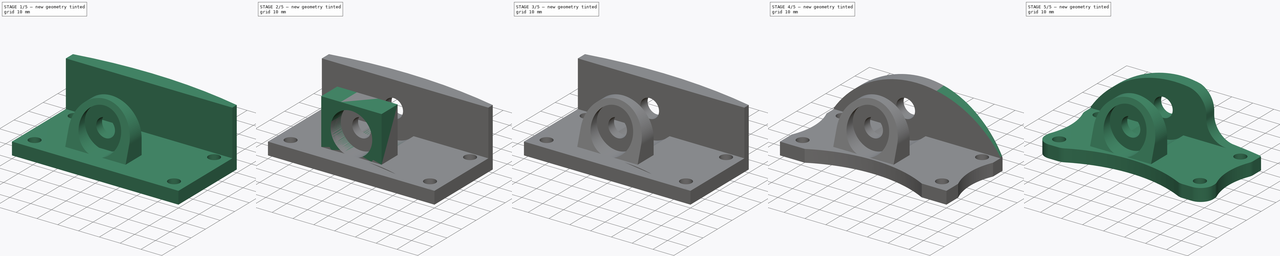
[diagram: build sequence overview — one tinted view per stage of 5, left to right]
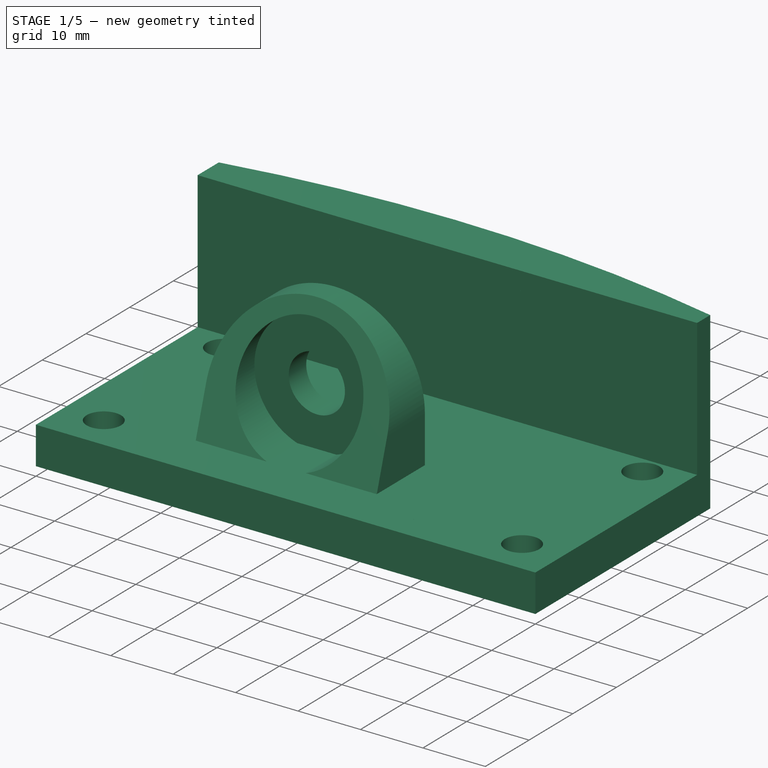
[diagram: stage 1 of 5 — iso view after this stage's code; geometry added in this stage tinted green]
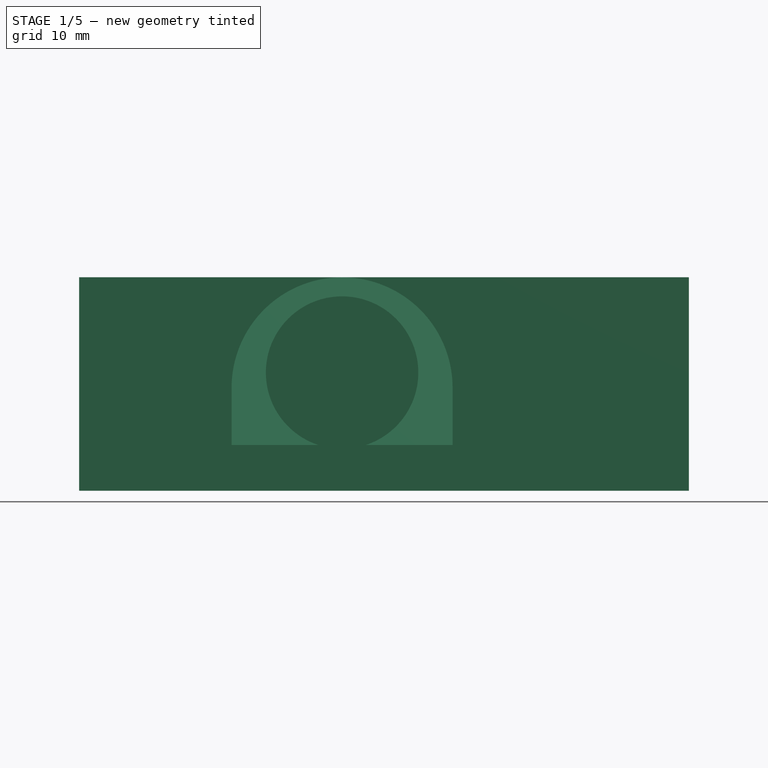
[diagram: stage 1 of 5 — front view after this stage's code; geometry added in this stage tinted green]
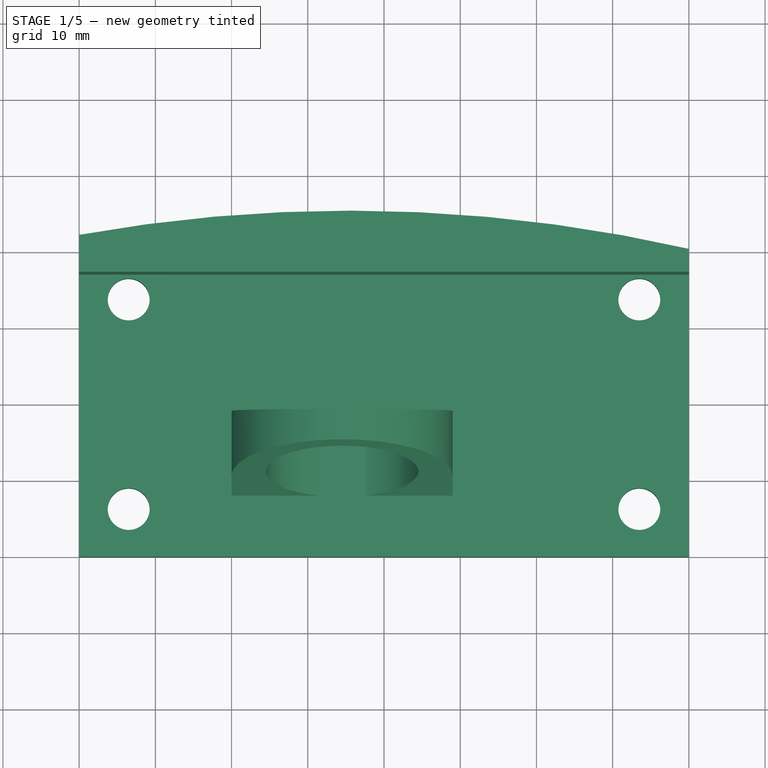
[diagram: stage 1 of 5 — top view after this stage's code; geometry added in this stage tinted green]
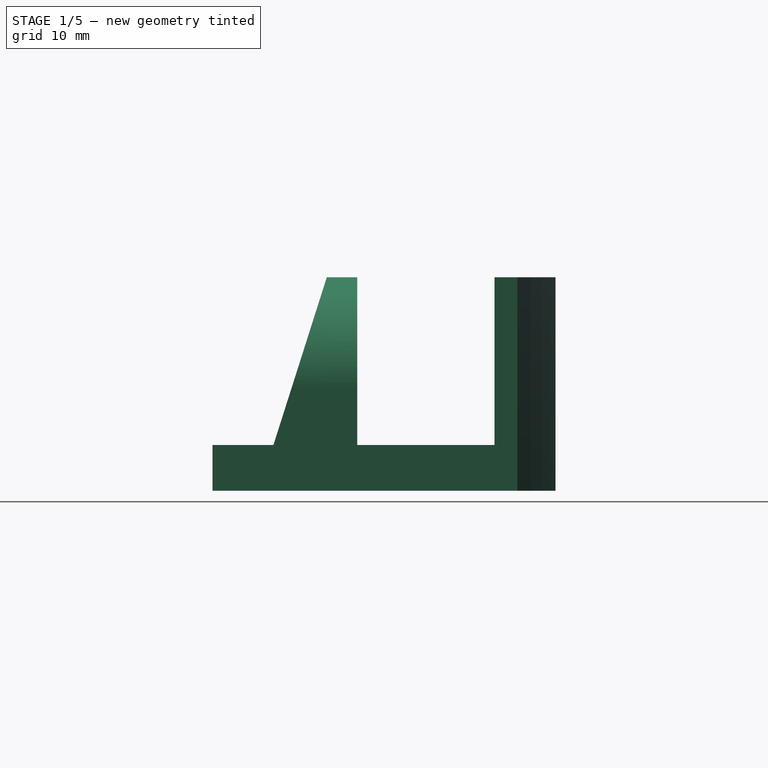
[diagram: stage 1 of 5 — right view after this stage's code; geometry added in this stage tinted green]
FCSTD DOCUMENT  (FreeCAD 0.17R7872 (Git))
Label: y_idler_mount_v4.0
License: All rights reserved
LicenseURL: http://en.wikipedia.org/wiki/All_rights_reserved
objects: Sketcher::SketchObject×17, PartDesign::Pocket×10, PartDesign::Pad×7, PartDesign::Chamfer×3, PartDesign::Fillet×3, Part::Feature×1
note: 58 computed .brp shape members not serialized (recipe doc carries the construction recipe); baked Part::Feature solids carry a one-line shape summary decoded from their .brp

FEATURE [Sketcher::SketchObject] Sketch
  MapMode = 5
  sketch-geometry (20):
    g0: LineSegment StartX=0 StartY=0 StartZ=0 EndX=80 EndY=0 EndZ=0
    g1: LineSegment StartX=80 StartY=0 StartZ=0 EndX=80 EndY=40 EndZ=0
    g2: LineSegment StartX=80 StartY=40 StartZ=0 EndX=0 EndY=40 EndZ=0
    g3: LineSegment StartX=0 StartY=40 StartZ=0 EndX=0 EndY=0 EndZ=0
    g4: LineSegment [constr] StartX=6.5 StartY=33.75 StartZ=0 EndX=73.5 EndY=33.75 EndZ=0
    g5: LineSegment [constr] StartX=73.5 StartY=33.75 StartZ=0 EndX=73.5 EndY=6.25 EndZ=0
    g6: LineSegment [constr] StartX=73.5 StartY=6.25 StartZ=0 EndX=6.5 EndY=6.25 EndZ=0
    g7: LineSegment [constr] StartX=6.5 StartY=6.25 StartZ=0 EndX=6.5 EndY=33.75 EndZ=0
    g8: LineSegment [constr] StartX=0 StartY=40 StartZ=0 EndX=6.5 EndY=40 EndZ=0
    g9: LineSegment [constr] StartX=6.5 StartY=40 StartZ=0 EndX=6.5 EndY=33.75 EndZ=0
    g10: LineSegment [constr] StartX=6.5 StartY=33.75 StartZ=0 EndX=0 EndY=33.75 EndZ=0
    g11: LineSegment [constr] StartX=0 StartY=33.75 StartZ=0 EndX=0 EndY=40 EndZ=0
    g12: LineSegment [constr] StartX=80 StartY=0 StartZ=0 EndX=73.5 EndY=0 EndZ=0
    g13: LineSegment [constr] StartX=73.5 StartY=0 StartZ=0 EndX=73.5 EndY=6.25 EndZ=0
    g14: LineSegment [constr] StartX=73.5 StartY=6.25 StartZ=0 EndX=80 EndY=6.25 EndZ=0
    g15: LineSegment [constr] StartX=80 StartY=6.25 StartZ=0 EndX=80 EndY=0 EndZ=0
    g16: Circle CenterX=6.5 CenterY=33.75 CenterZ=0 NormalX=0 NormalY=0 NormalZ=1 Radius=2.75
    g17: Circle CenterX=73.5 CenterY=33.75 CenterZ=0 NormalX=0 NormalY=0 NormalZ=1 Radius=2.75
    g18: Circle CenterX=73.5 CenterY=6.25 CenterZ=0 NormalX=0 NormalY=0 NormalZ=1 Radius=2.75
    g19: Circle CenterX=6.5 CenterY=6.25 CenterZ=0 NormalX=0 NormalY=0 NormalZ=1 Radius=2.75
  constraints (51):
    c: Coincident(g0,g1)
    c: Coincident(g2,g3)
    c: Coincident(g3,g0)
    c: Horizontal(g0)
    c: Horizontal(g2)
    c: Vertical(g1)
    c: Vertical(g3)
    c: Coincident(g0,g-1)
    c: DistanceX(g2) = -80
    c: DistanceY(g3) = -40
    c: Coincident(g5,g6)
    c: Coincident(g6,g7)
    c: Coincident(g7,g4)
    c: Horizontal(g4)
    c: Horizontal(g6)
    c: Vertical(g5)
    c: Vertical(g7)
    c: Coincident(g8,g9)
    c: Coincident(g9,g10)
    c: Coincident(g10,g11)
    c: Coincident(g11,g8)
    c: Horizontal(g8)
    c: Horizontal(g10)
    c: Vertical(g9)
    c: Vertical(g11)
    c: Coincident(g8,g2)
    c: Coincident(g9,g4)
    c: Coincident(g12,g13)
    c: Coincident(g13,g14)
    c: Coincident(g14,g15)
    c: Coincident(g15,g12)
    c: Horizontal(g12)
    c: Horizontal(g14)
    c: Vertical(g13)
    c: Vertical(g15)
    c: Coincident(g12,g0)
    c: Coincident(g13,g5)
    c: Equal(g14,g10)
    c: Equal(g9,g13)
    c: Coincident(g16,g4)
    c: Coincident(g4,g5)
    c: Coincident(g17,g4)
    c: Coincident(g18,g5)
    c: Coincident(g19,g6)
    c: Radius(g16) = 2.75
    c: Equal(g16,g19)
    c: Equal(g16,g17)
    c: Equal(g16,g18)
    c: DistanceX(g6) = -67
    c: DistanceY(g5) = -27.5
    c: Coincident(g2,g1)
FEATURE [PartDesign::Pad] Pad
  Length = 6
  Length2 = 100
  Profile = -> Sketch
  Type = 0
FEATURE [Sketcher::SketchObject] Sketch001
  ExternalGeometry = -> [Pad]
  MapMode = 5
  Placement = pos=(0,0,6) rot=(0,0,1;0rad)
  Support = -> [Pad]
  sketch-geometry (4):
    g0: ArcOfCircle CenterX=35.5 CenterY=-154.987 CenterZ=0 NormalX=0 NormalY=0 NormalZ=1 Radius=200 StartAngle=1.34642 EndAngle=1.74924
    g1: LineSegment StartX=0 StartY=41.8376 StartZ=0 EndX=0 EndY=37 EndZ=0
    g2: LineSegment StartX=0 StartY=37 StartZ=0 EndX=80 EndY=37 EndZ=0
    g3: LineSegment StartX=80 StartY=37 StartZ=0 EndX=80 EndY=40 EndZ=0
  constraints (12):
    c: Radius(g0) = 200
    c: DistanceX(g-1,g0) = 35.5
    c: PointOnObject(g0,g-2)
    c: Coincident(g1,g0)
    c: PointOnObject(g1,g-2)
    c: Coincident(g1,g2)
    c: Horizontal(g2)
    c: Coincident(g2,g3)
    c: Coincident(g3,g0)
    c: Vertical(g3)
    c: Coincident(g0,g-3)
    c: DistanceY(g3) = 3
FEATURE [PartDesign::Pad] Pad001
  Length = 22
  Length2 = 6
  Profile = -> Sketch001
  Type = 4
FEATURE [Part::Feature] Fillet002_solid  label="Fillet002 (Solid)"
  shape: bbox 81.91 x 45.05 x 28 mm, 70 faces (baked)
FEATURE [Sketcher::SketchObject] Sketch014
  ExternalGeometry = -> [Fillet002_solid]
  MapMode = 5
  Placement = pos=(0,0,0) rot=(1,0,0;3.14159rad)
  Support = -> [Fillet002_solid]
  sketch-geometry (4):
    g0: LineSegment StartX=20 StartY=-19 StartZ=0 EndX=49 EndY=-19 EndZ=0
    g1: LineSegment StartX=49 StartY=-19 StartZ=0 EndX=49 EndY=-8 EndZ=0
    g2: LineSegment StartX=49 StartY=-8 StartZ=0 EndX=20 EndY=-8 EndZ=0
    g3: LineSegment StartX=20 StartY=-8 StartZ=0 EndX=20 EndY=-19 EndZ=0
  constraints (10):
    c: Coincident(g0,g1)
    c: Coincident(g1,g2)
    c: Coincident(g2,g3)
    c: Coincident(g3,g0)
    c: Horizontal(g0)
    c: Horizontal(g2)
    c: Vertical(g1)
    c: Vertical(g3)
    c: Coincident(g0,g-3)
    c: Coincident(g1,g-4)
FEATURE [PartDesign::Pad] Pad006
  Length = 10
  Length2 = 100
  Profile = -> Sketch014
  Reversed = true
  Type = 0
FEATURE [Sketcher::SketchObject] Sketch015
  ExternalGeometry = -> [Pad006]
  MapMode = 5
  Placement = pos=(80,0,0) rot=(0.57735,0.57735,0.57735;2.0944rad)
  Support = -> [Pad006]
  sketch-geometry (3):
    g0: LineSegment StartX=8 StartY=6 StartZ=0 EndX=10.3864 EndY=13.5 EndZ=0
    g1: LineSegment StartX=10.3864 StartY=13.5 StartZ=0 EndX=8 EndY=13.5 EndZ=0
    g2: LineSegment StartX=8 StartY=13.5 StartZ=0 EndX=8 EndY=6 EndZ=0
  constraints (7):
    c: Coincident(g-4,g0)
    c: Coincident(g0,g-3)
    c: Coincident(g0,g1)
    c: Horizontal(g1)
    c: Coincident(g1,g2)
    c: Coincident(g2,g0)
    c: Vertical(g2)
FEATURE [PartDesign::Pocket] Pocket008
  Length = 5
  Profile = -> Sketch015
  Type = 1
FEATURE [Sketcher::SketchObject] Sketch016
  ExternalGeometry = -> [Pocket008]
  MapMode = 5
  Placement = pos=(0,0,0) rot=(1,0,0;1.5708rad)
  Support = -> [Pocket008]
  sketch-geometry (1):
    g0: Circle CenterX=34.5 CenterY=15.5 CenterZ=0 NormalX=0 NormalY=0 NormalZ=1 Radius=10
  constraints (2):
    c: Coincident(g0,g-4)
    c: PointOnObject(g-4,g0)
FEATURE [PartDesign::Pocket] Pocket009
  Length = 15
  Profile = -> Sketch016
  Type = 0
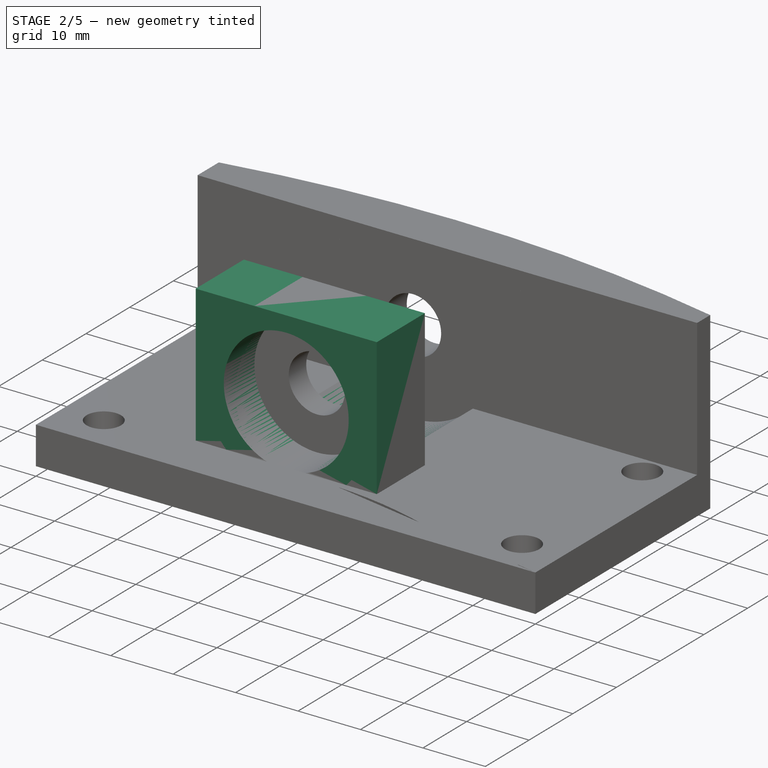
[diagram: stage 2 of 5 — iso view after this stage's code; geometry added in this stage tinted green]
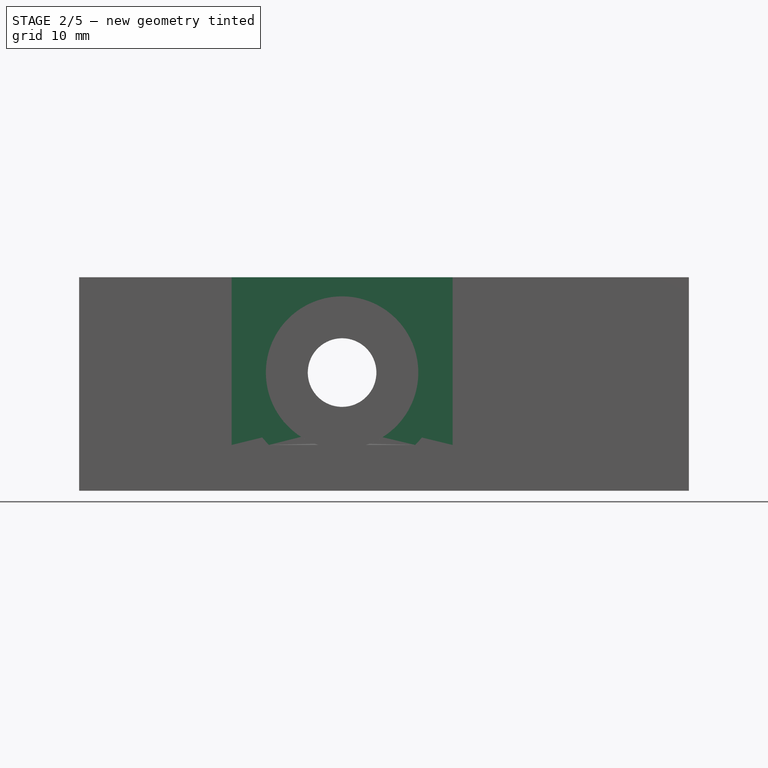
[diagram: stage 2 of 5 — front view after this stage's code; geometry added in this stage tinted green]
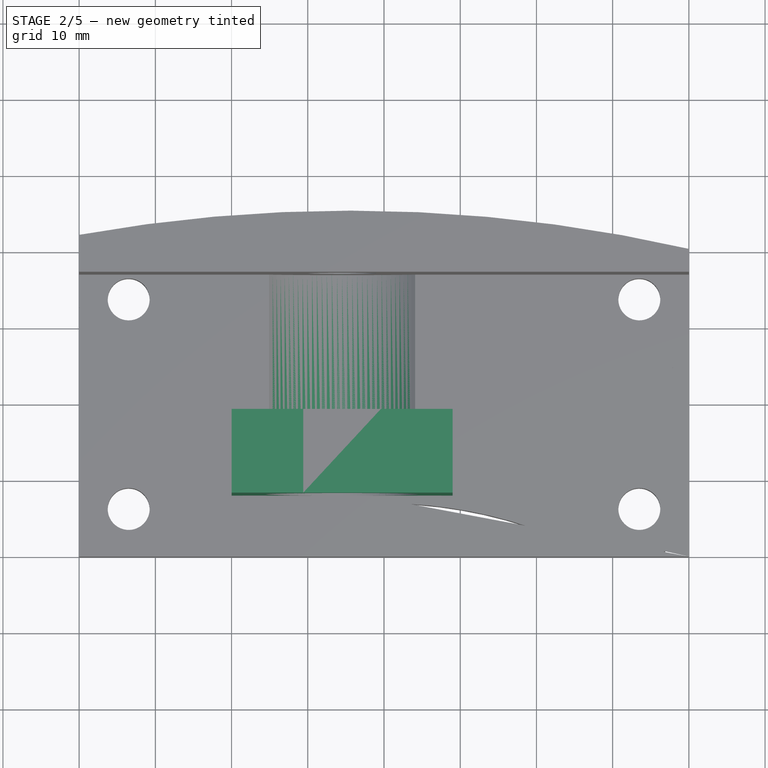
[diagram: stage 2 of 5 — top view after this stage's code; geometry added in this stage tinted green]
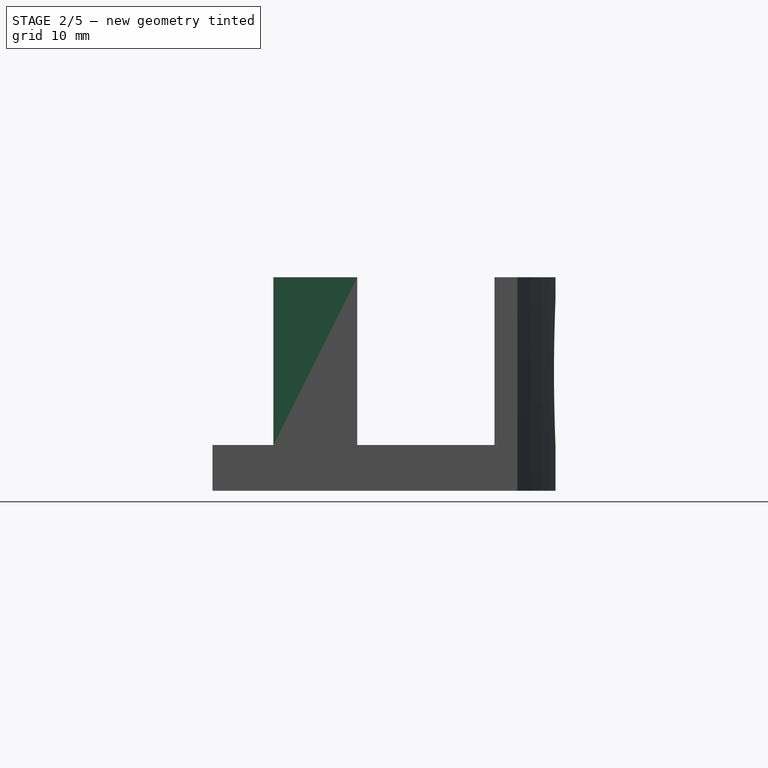
[diagram: stage 2 of 5 — right view after this stage's code; geometry added in this stage tinted green]
FEATURE [Sketcher::SketchObject] Sketch002
  ExternalGeometry = -> [Pad001]
  MapMode = 5
  Placement = pos=(0,0,6) rot=(0,0,1;0rad)
  Support = -> [Pad001]
  sketch-geometry (4):
    g0: LineSegment StartX=20 StartY=19 StartZ=0 EndX=49 EndY=19 EndZ=0
    g1: LineSegment StartX=49 StartY=19 StartZ=0 EndX=49 EndY=8 EndZ=0
    g2: LineSegment StartX=49 StartY=8 StartZ=0 EndX=20 EndY=8 EndZ=0
    g3: LineSegment StartX=20 StartY=8 StartZ=0 EndX=20 EndY=19 EndZ=0
  constraints (12):
    c: Coincident(g0,g1)
    c: Coincident(g1,g2)
    c: Coincident(g2,g3)
    c: Coincident(g3,g0)
    c: Horizontal(g0)
    c: Horizontal(g2)
    c: Vertical(g1)
    c: Vertical(g3)
    c: DistanceY(g3) = 11
    c: DistanceX(g0) = 29
    c: DistanceX(g-4,g2) = 13.5
    c: DistanceY(g-3,g0) = -18
FEATURE [PartDesign::Pad] Pad002
  Length = 22
  Length2 = 100
  Profile = -> Sketch002
  Type = 0
FEATURE [Sketcher::SketchObject] Sketch003
  ExternalGeometry = -> [Pad002]
  MapMode = 5
  Placement = pos=(0,8,0) rot=(1,0,0;1.5708rad)
  Support = -> [Pad002]
  sketch-geometry (4):
    g0: Circle [constr] CenterX=34.5 CenterY=15.5 CenterZ=0 NormalX=0 NormalY=0 NormalZ=1 Radius=4.5
    g1: LineSegment [constr] StartX=20 StartY=28 StartZ=0 EndX=34.5 EndY=15.5 EndZ=0
    g2: LineSegment [constr] StartX=34.5 StartY=15.5 StartZ=0 EndX=49 EndY=28 EndZ=0
    g3: Circle CenterX=34.5 CenterY=15.5 CenterZ=0 NormalX=0 NormalY=0 NormalZ=1 Radius=13.5
  constraints (9):
    c: DistanceY(g0,g-3) = -9.5
    c: Coincident(g-4,g1)
    c: Coincident(g1,g0)
    c: Coincident(g1,g2)
    c: Coincident(g2,g-4)
    c: Equal(g2,g1)
    c: Radius(g0) = 4.5
    c: Coincident(g3,g0)
    c: Radius(g3) = 13.5
FEATURE [PartDesign::Pocket] Pocket
  Length = 29
  Profile = -> Sketch003
  Type = 0
FEATURE [Sketcher::SketchObject] Sketch004
  ExternalGeometry = -> [Pocket]
  MapMode = 5
  Placement = pos=(0,8,0) rot=(1,0,0;1.5708rad)
  Support = -> [Pocket]
  sketch-geometry (4):
    g0: LineSegment StartX=20 StartY=28 StartZ=0 EndX=49 EndY=28 EndZ=0
    g1: LineSegment StartX=49 StartY=28 StartZ=0 EndX=49 EndY=6 EndZ=0
    g2: LineSegment StartX=49 StartY=6 StartZ=0 EndX=20 EndY=6 EndZ=0
    g3: LineSegment StartX=20 StartY=6 StartZ=0 EndX=20 EndY=28 EndZ=0
  constraints (11):
    c: Coincident(g0,g1)
    c: Coincident(g1,g2)
    c: Coincident(g2,g3)
    c: Coincident(g3,g0)
    c: Horizontal(g0)
    c: Horizontal(g2)
    c: Vertical(g1)
    c: Vertical(g3)
    c: Coincident(g0,g-3)
    c: PointOnObject(g1,g-4)
    c: DistanceX(g0) = 29
FEATURE [PartDesign::Pad] Pad003
  Length = 11
  Length2 = 100
  Profile = -> Sketch004
  Reversed = true
  Type = 0
FEATURE [Sketcher::SketchObject] Sketch005
  ExternalGeometry = -> [Pad003]
  MapMode = 5
  Placement = pos=(0,8,0) rot=(1,0,0;1.5708rad)
  Support = -> [Pad003]
  sketch-geometry (1):
    g0: Circle CenterX=34.5 CenterY=15.5 CenterZ=0 NormalX=0 NormalY=0 NormalZ=1 Radius=10
  constraints (2):
    c: Coincident(g0,g-3)
    c: Radius(g0) = 10
FEATURE [PartDesign::Pocket] Pocket001
  Length = 5
  Profile = -> Sketch005
  Type = 1
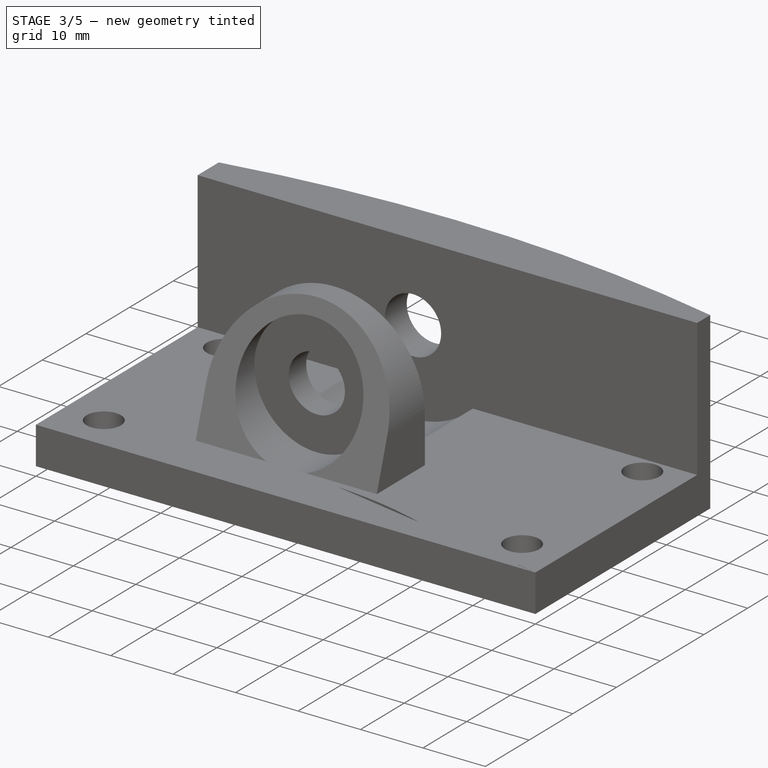
[diagram: stage 3 of 5 — iso view after this stage's code; geometry added in this stage tinted green]
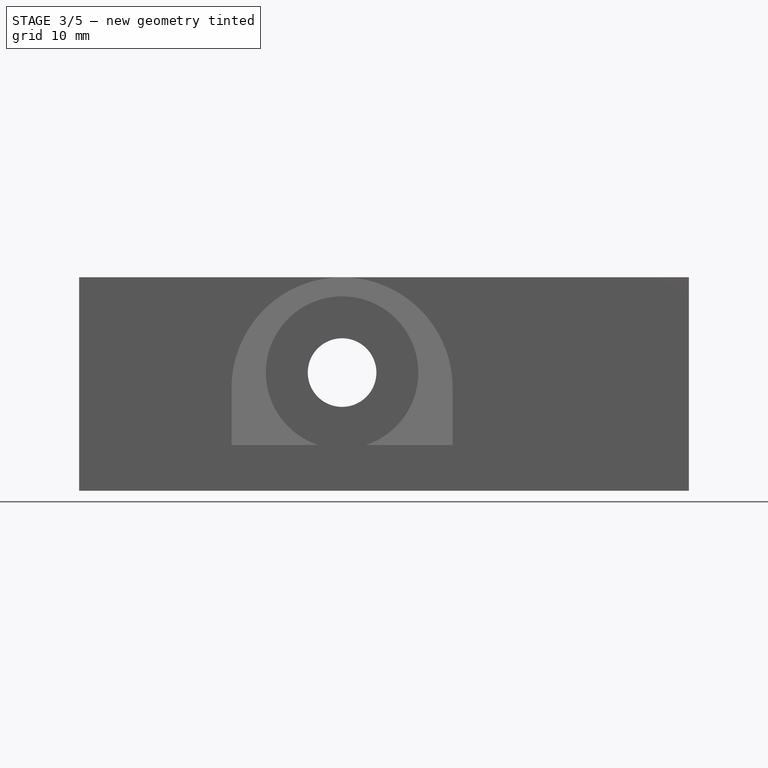
[diagram: stage 3 of 5 — front view after this stage's code; geometry added in this stage tinted green]
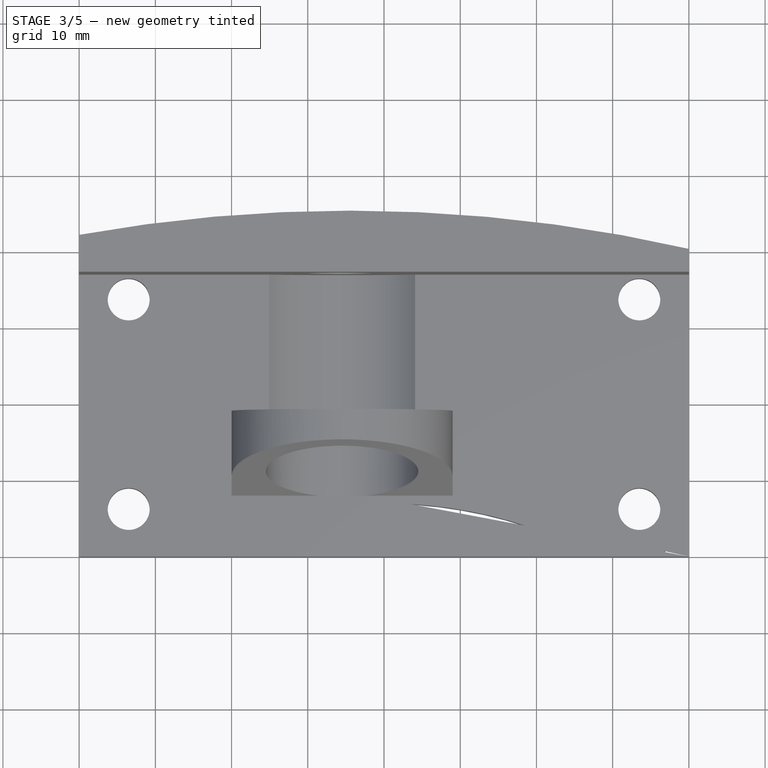
[diagram: stage 3 of 5 — top view after this stage's code; geometry added in this stage tinted green]
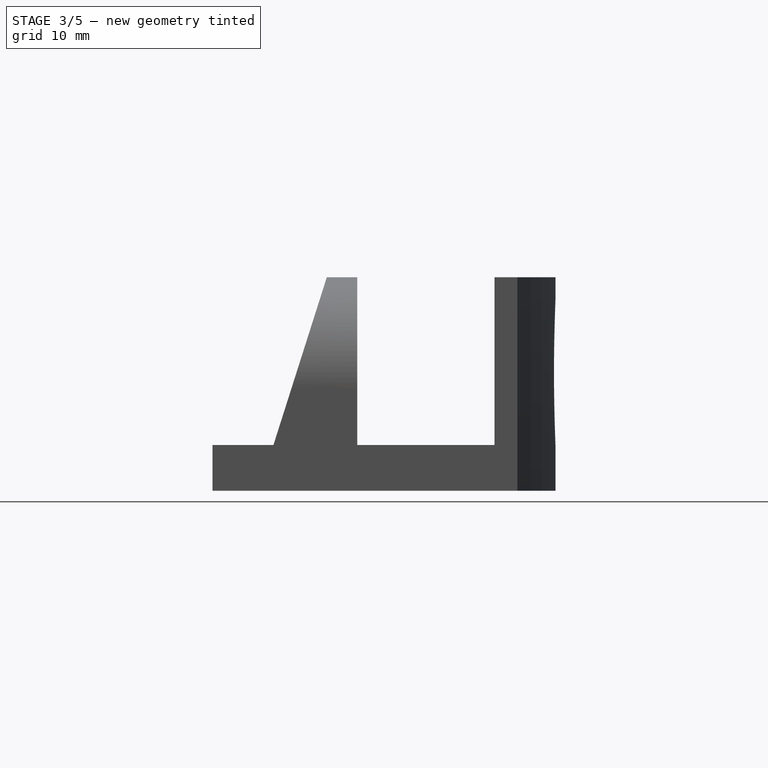
[diagram: stage 3 of 5 — right view after this stage's code; geometry added in this stage tinted green]
FEATURE [Sketcher::SketchObject] Sketch006
  ExternalGeometry = -> [Pocket001]
  MapMode = 5
  Placement = pos=(0,37,0) rot=(1,0,0;1.5708rad)
  Support = -> [Pocket001]
  sketch-geometry (2):
    g0: Circle CenterX=34.5 CenterY=15.5 CenterZ=0 NormalX=0 NormalY=0 NormalZ=1 Radius=4.5
    g1: Circle CenterX=34.5 CenterY=15.5 CenterZ=0 NormalX=0 NormalY=0 NormalZ=1 Radius=10.5
  constraints (4):
    c: Coincident(g0,g-3)
    c: Coincident(g1,g0)
    c: Radius(g1) = 10.5
    c: Radius(g0) = 4.5
FEATURE [PartDesign::Pad] Pad004
  Length = 5
  Length2 = 100
  Profile = -> Sketch006
  Reversed = true
  Type = 0
FEATURE [PartDesign::Chamfer] Chamfer
  Base = -> Pad004 [Edge98]
  Size = 2
FEATURE [Sketcher::SketchObject] Sketch007
  ExternalGeometry = -> [Chamfer]
  MapMode = 5
  Placement = pos=(0,19,0) rot=(0,0.707107,0.707107;3.14159rad)
  Support = -> [Chamfer]
  sketch-geometry (2):
    g0: Circle CenterX=-34.5 CenterY=15.5 CenterZ=0 NormalX=0 NormalY=0 NormalZ=1 Radius=4.5
    g1: Circle CenterX=-34.5 CenterY=15.5 CenterZ=0 NormalX=0 NormalY=0 NormalZ=1 Radius=10.5
  constraints (4):
    c: Coincident(g0,g-3)
    c: Coincident(g1,g0)
    c: Radius(g1) = 10.5
    c: Radius(g0) = 4.5
FEATURE [PartDesign::Pad] Pad005
  Length = 4
  Length2 = 100
  Profile = -> Sketch007
  Reversed = true
  Type = 0
FEATURE [Sketcher::SketchObject] Sketch008
  ExternalGeometry = -> [Pad005]
  MapMode = 5
  Placement = pos=(49,0,0) rot=(0.57735,0.57735,0.57735;2.0944rad)
  Support = -> [Pad005]
  sketch-geometry (3):
    g0: LineSegment StartX=8 StartY=6 StartZ=0 EndX=15 EndY=28 EndZ=0
    g1: LineSegment StartX=15 StartY=28 StartZ=0 EndX=8 EndY=28 EndZ=0
    g2: LineSegment StartX=8 StartY=28 StartZ=0 EndX=8 EndY=6 EndZ=0
  constraints (7):
    c: Coincident(g-4,g0)
    c: PointOnObject(g0,g-3)
    c: Coincident(g0,g1)
    c: Coincident(g1,g-4)
    c: Coincident(g1,g2)
    c: Coincident(g2,g0)
    c: DistanceX(g0,g-3) = 4
FEATURE [PartDesign::Pocket] Pocket002
  Length = 5
  Profile = -> Sketch008
  Type = 1
FEATURE [Sketcher::SketchObject] Sketch009
  ExternalGeometry = -> [Pocket002]
  MapMode = 5
  Placement = pos=(0,19,0) rot=(0,0.707107,0.707107;3.14159rad)
  Support = -> [Pocket002]
  sketch-geometry (5):
    g0: ArcOfCircle CenterX=-34.5 CenterY=13.5 CenterZ=0 NormalX=0 NormalY=0 NormalZ=1 Radius=14.5 StartAngle=6.28319 EndAngle=9.42478
    g1: LineSegment [constr] StartX=-34.5 StartY=15.5 StartZ=0 EndX=-34.5 EndY=13.5 EndZ=0
    g2: LineSegment StartX=-49 StartY=13.5 StartZ=0 EndX=-49 EndY=33.5 EndZ=0
    g3: LineSegment StartX=-49 StartY=33.5 StartZ=0 EndX=-20 EndY=33.5 EndZ=0
    g4: LineSegment StartX=-20 StartY=33.5 StartZ=0 EndX=-20 EndY=13.5 EndZ=0
  constraints (14):
    c: PointOnObject(g0,g-4)
    c: PointOnObject(g0,g-3)
    c: Coincident(g1,g-5)
    c: Coincident(g1,g0)
    c: Vertical(g1)
    c: Tangent(g0,g-3)
    c: Tangent(g0,g-6)
    c: Tangent(g0,g2) = 1.5708
    c: Coincident(g2,g3)
    c: Horizontal(g3)
    c: Coincident(g3,g4)
    c: Coincident(g4,g0)
    c: Vertical(g4)
    c: DistanceY(g2) = 20
FEATURE [PartDesign::Pocket] Pocket003
  Length = 5
  Profile = -> Sketch009
  Type = 1
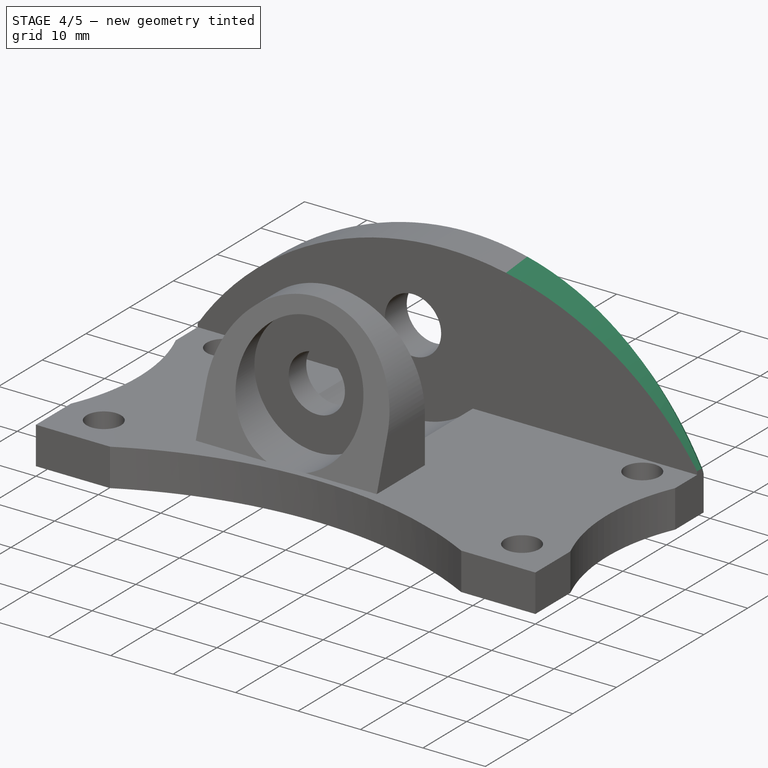
[diagram: stage 4 of 5 — iso view after this stage's code; geometry added in this stage tinted green]
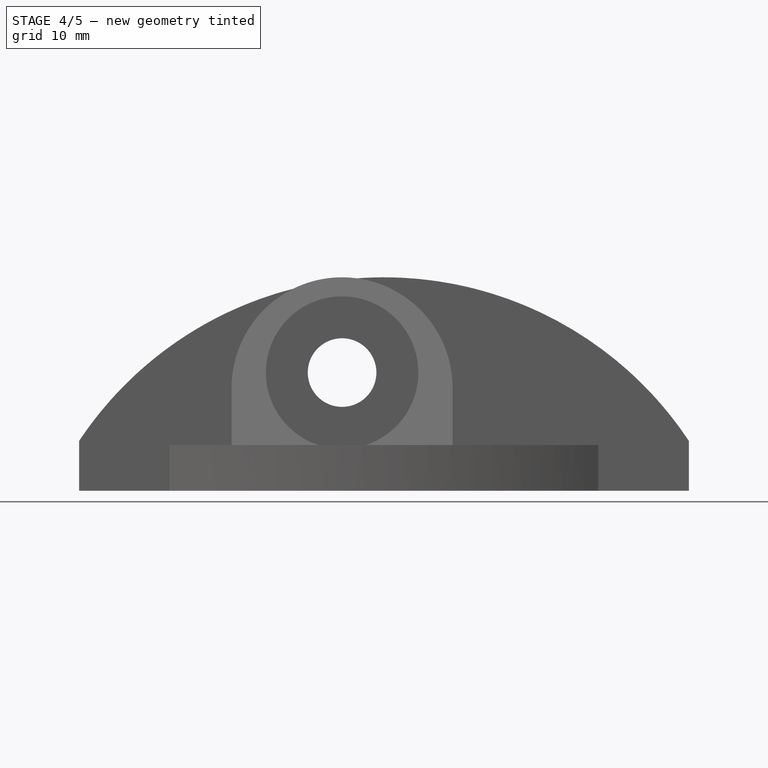
[diagram: stage 4 of 5 — front view after this stage's code; geometry added in this stage tinted green]
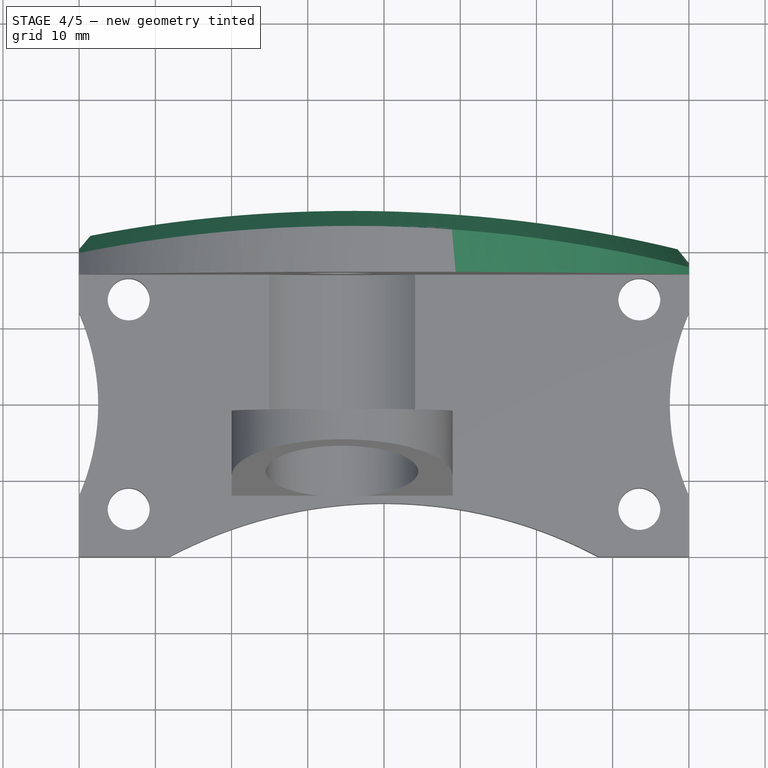
[diagram: stage 4 of 5 — top view after this stage's code; geometry added in this stage tinted green]
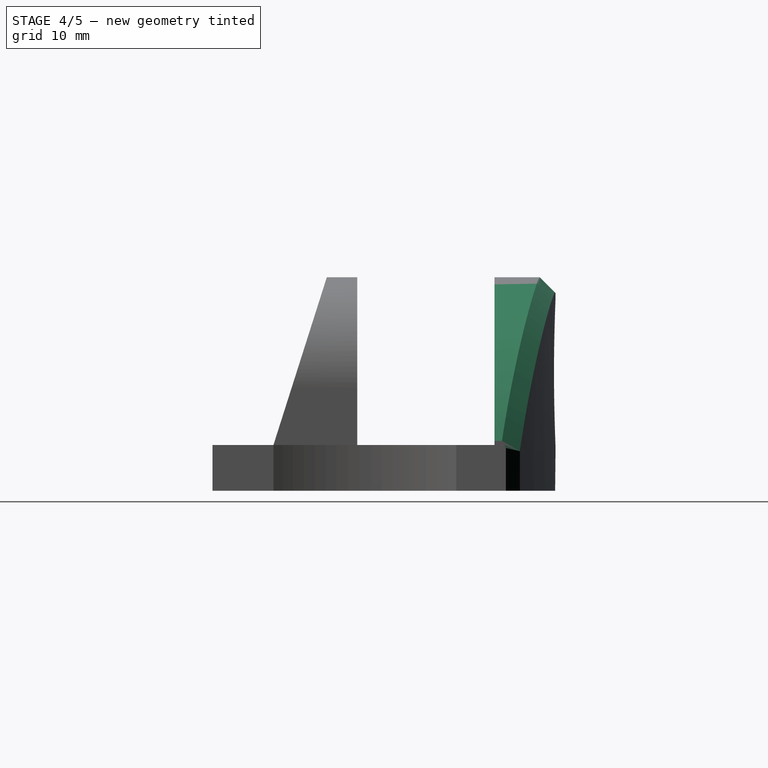
[diagram: stage 4 of 5 — right view after this stage's code; geometry added in this stage tinted green]
FEATURE [Sketcher::SketchObject] Sketch010
  ExternalGeometry = -> [Pocket003]
  MapMode = 5
  Placement = pos=(0,37,0) rot=(1,0,0;1.5708rad)
  Support = -> [Pocket003]
  sketch-geometry (3):
    g0: LineSegment [constr] StartX=34.5 StartY=15.5 StartZ=0 EndX=40 EndY=-20 EndZ=0
    g1: Circle CenterX=40 CenterY=-20 CenterZ=0 NormalX=0 NormalY=0 NormalZ=1 Radius=48
    g2: Circle CenterX=40 CenterY=-20 CenterZ=0 NormalX=0 NormalY=0 NormalZ=1 Radius=70
  constraints (7):
    c: Coincident(g0,g-7)
    c: Coincident(g1,g0)
    c: Tangent(g1,g-3)
    c: DistanceX(g-1,g0) = 40
    c: DistanceY(g-1,g0) = -20
    c: Coincident(g2,g0)
    c: Radius(g2) = 70
FEATURE [PartDesign::Pocket] Pocket004
  Length = 5
  Profile = -> Sketch010
  Type = 1
FEATURE [PartDesign::Chamfer] Chamfer001
  Base = -> Pocket004 [Edge112]
  Size = 2
FEATURE [PartDesign::Chamfer] Chamfer002
  Base = -> Chamfer001 [Edge1,Edge6]
  Size = 1.5
FEATURE [Sketcher::SketchObject] Sketch011
  ExternalGeometry = -> [Chamfer002]
  MapMode = 5
  Placement = pos=(0,0,6) rot=(0,0,1;0rad)
  Support = -> [Chamfer002]
  sketch-geometry (3):
    g0: Circle CenterX=40 CenterY=-53 CenterZ=0 NormalX=0 NormalY=0 NormalZ=1 Radius=60
    g1: Circle CenterX=-27.5 CenterY=20 CenterZ=0 NormalX=0 NormalY=0 NormalZ=1 Radius=30
    g2: Circle CenterX=107.5 CenterY=20 CenterZ=0 NormalX=0 NormalY=0 NormalZ=1 Radius=30
  constraints (9):
    c: DistanceX(g-1,g0) = 40
    c: Radius(g0) = 60
    c: DistanceY(g-1,g1) = 20
    c: Radius(g1) = 30
    c: Equal(g2,g1)
    c: DistanceY(g-1,g2) = 20
    c: DistanceX(g-1,g2) = 107.5
    c: DistanceX(g-1,g1) = -27.5
    c: DistanceY(g-1,g0) = -53
FEATURE [PartDesign::Pocket] Pocket005
  Length = 5
  Profile = -> Sketch011
  Type = 1
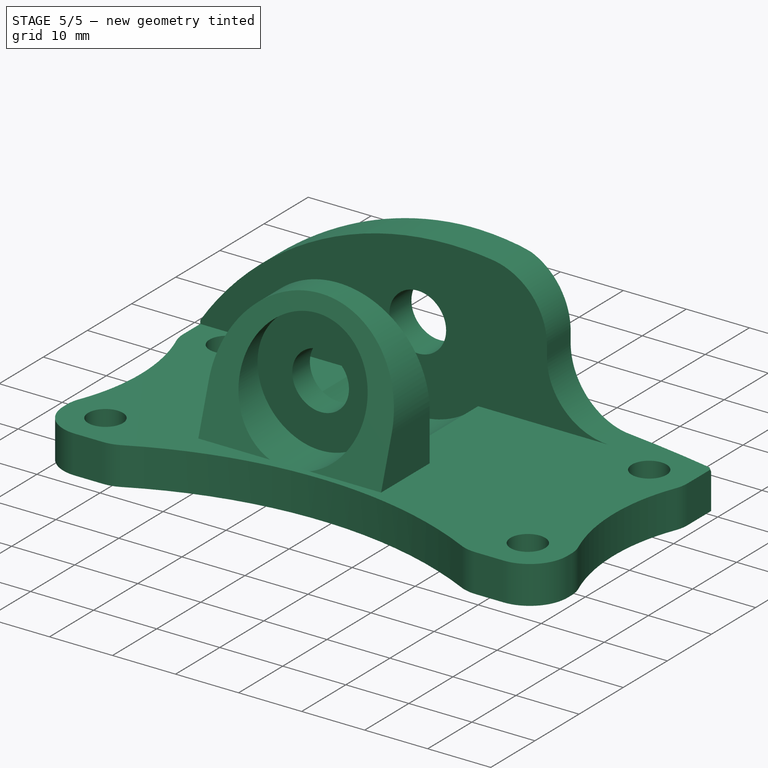
[diagram: stage 5 of 5 — iso view after this stage's code; geometry added in this stage tinted green]
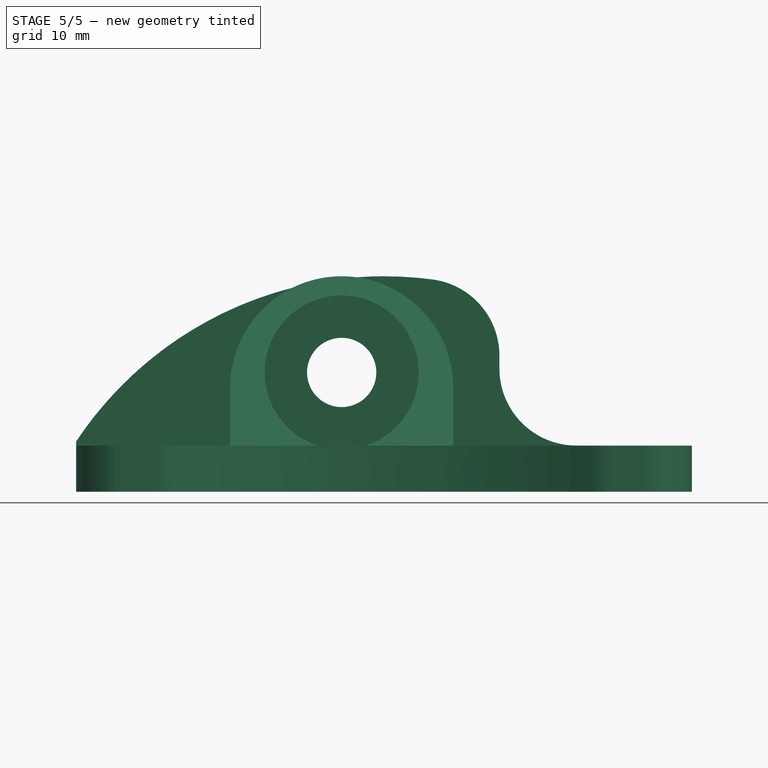
[diagram: stage 5 of 5 — front view after this stage's code; geometry added in this stage tinted green]
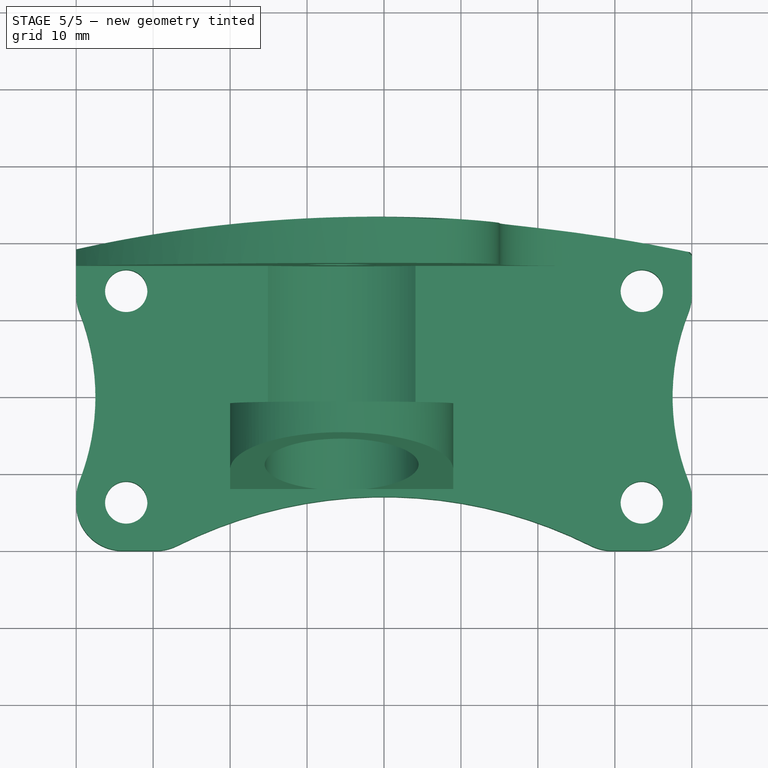
[diagram: stage 5 of 5 — top view after this stage's code; geometry added in this stage tinted green]
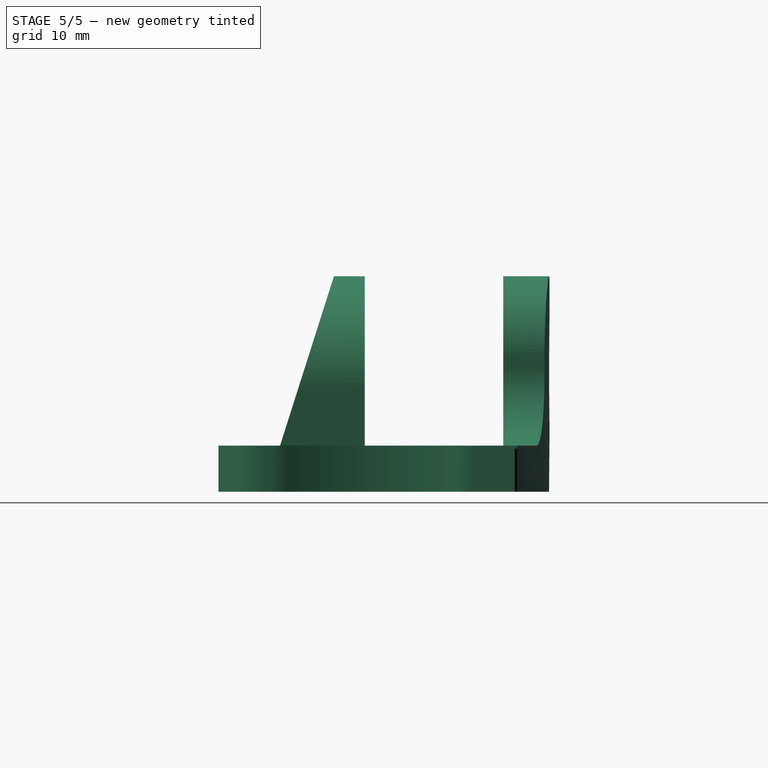
[diagram: stage 5 of 5 — right view after this stage's code; geometry added in this stage tinted green]
FEATURE [PartDesign::Fillet] Fillet
  Base = -> Pocket005 [Edge89,Edge87]
  Radius = 6
FEATURE [PartDesign::Fillet] Fillet001
  Base = -> Fillet [Edge35,Edge25,Edge19,Edge24,Edge36,Edge41]
  Radius = 6
FEATURE [Sketcher::SketchObject] Sketch012
  ExternalGeometry = -> [Fillet001]
  MapMode = 5
  Placement = pos=(0,0,0) rot=(1,0,0;3.14159rad)
  Support = -> [Fillet001]
  sketch-geometry (3):
    g0: Circle CenterX=39 CenterY=154.987 CenterZ=0 NormalX=0 NormalY=0 NormalZ=1 Radius=198
    g1: LineSegment [constr] StartX=35.5 StartY=154.987 StartZ=0 EndX=39 EndY=154.987 EndZ=0
    g2: Circle CenterX=39 CenterY=154.987 CenterZ=0 NormalX=0 NormalY=0 NormalZ=1 Radius=205
  constraints (7):
    c: Radius(g0) = 198
    c: DistanceX(g-1,g0) = 39
    c: Coincident(g1,g-3)
    c: Coincident(g1,g0)
    c: Horizontal(g1)
    c: Coincident(g2,g0)
    c: Radius(g2) = 205
FEATURE [PartDesign::Pocket] Pocket006
  Length = 5
  Profile = -> Sketch012
  Type = 1
FEATURE [Sketcher::SketchObject] Sketch013
  MapMode = 5
  Placement = pos=(0,37,0) rot=(1,0,0;1.5708rad)
  Support = -> [Pocket006]
  sketch-geometry (4):
    g0: LineSegment StartX=80 StartY=6 StartZ=0 EndX=55 EndY=6 EndZ=0
    g1: LineSegment StartX=55 StartY=6 StartZ=0 EndX=55 EndY=31 EndZ=0
    g2: LineSegment StartX=55 StartY=31 StartZ=0 EndX=80 EndY=31 EndZ=0
    g3: LineSegment StartX=80 StartY=31 StartZ=0 EndX=80 EndY=6 EndZ=0
  constraints (12):
    c: Coincident(g0,g1)
    c: Coincident(g1,g2)
    c: Coincident(g2,g3)
    c: Coincident(g3,g0)
    c: Horizontal(g0)
    c: Horizontal(g2)
    c: Vertical(g1)
    c: Vertical(g3)
    c: DistanceX(g0) = 80
    c: DistanceY(g0) = 6
    c: DistanceY(g3) = -25
    c: Equal(g2,g3)
FEATURE [PartDesign::Pocket] Pocket007
  Length = 5
  Profile = -> Sketch013
  Type = 1
FEATURE [PartDesign::Fillet] Fillet002
  Base = -> Pocket007 [Edge142,Edge118]
  Radius = 10
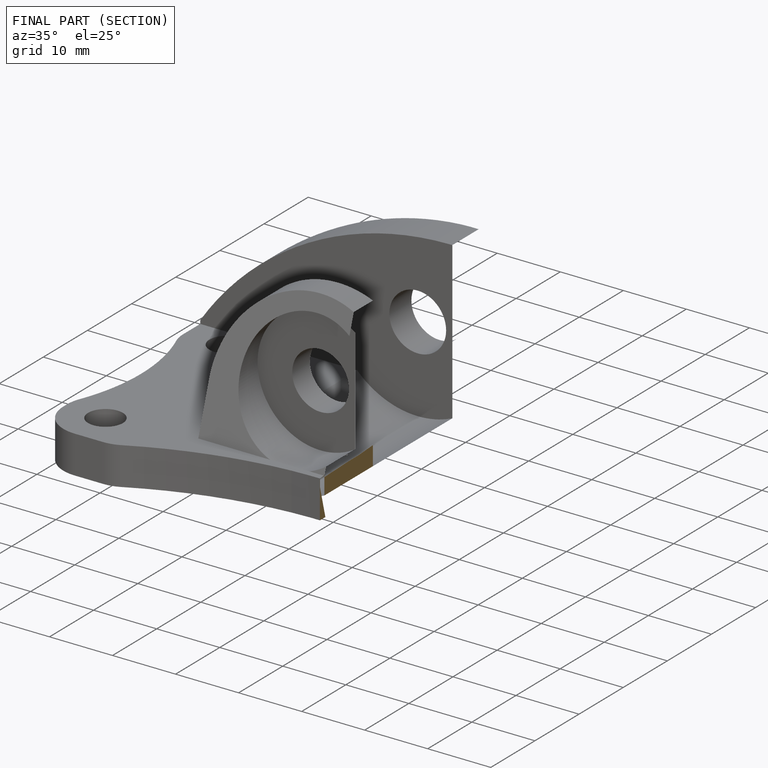
[diagram: finished part — half-section view (interior)]
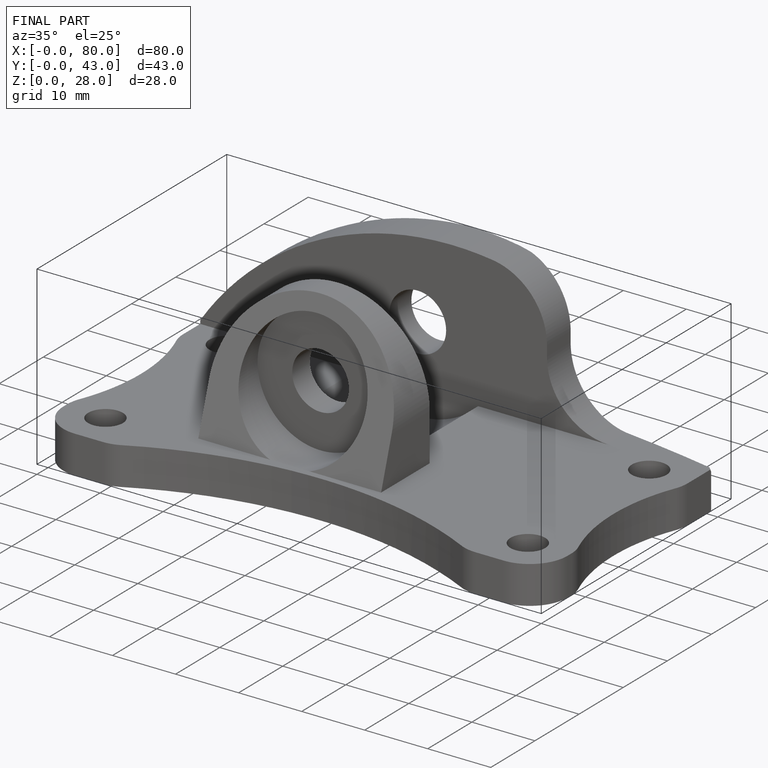
[diagram: finished part — iso view with bounding-box wireframe]
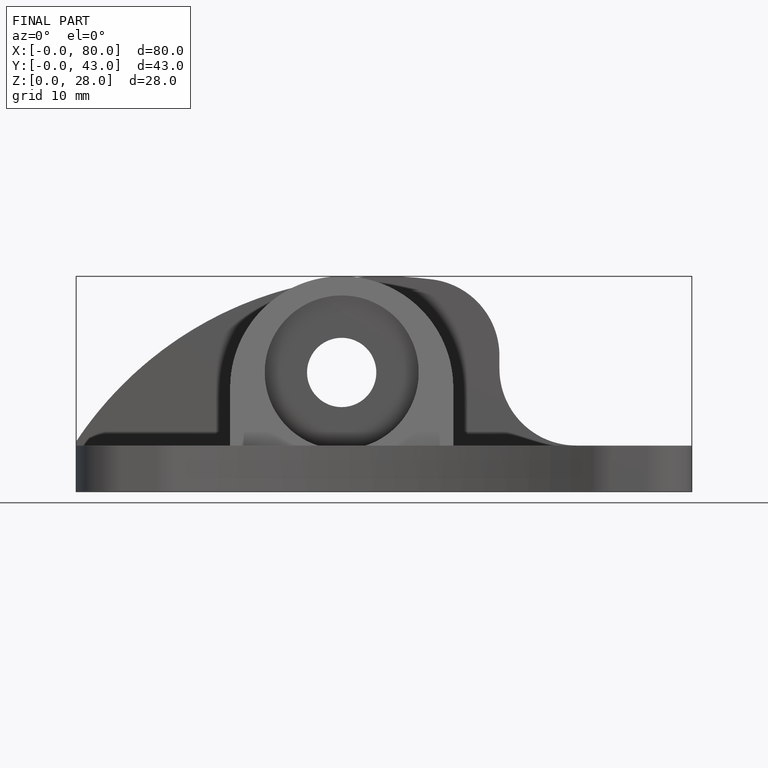
[diagram: finished part — front view with bounding-box wireframe]
